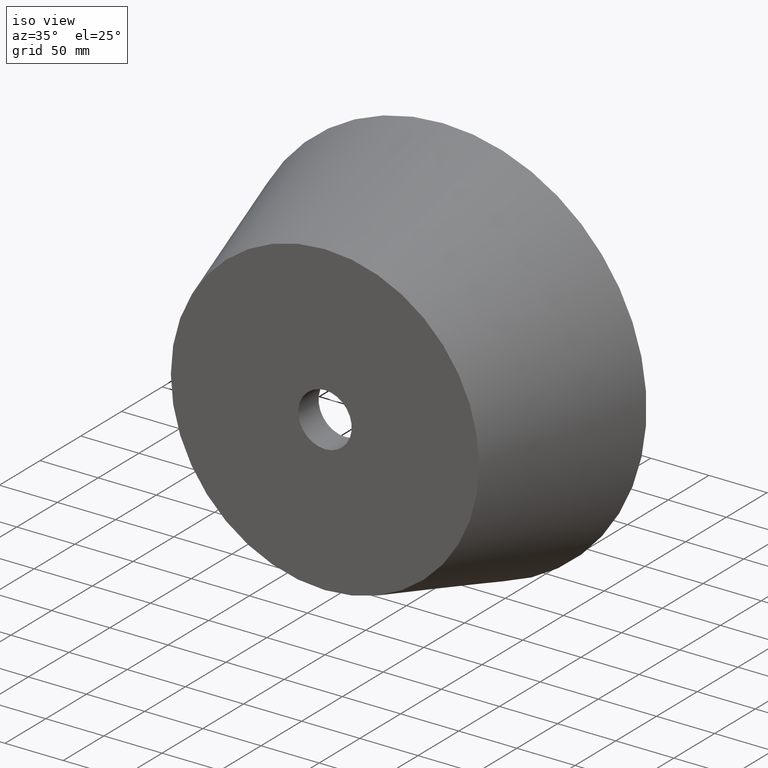
[diagram: clean part render]
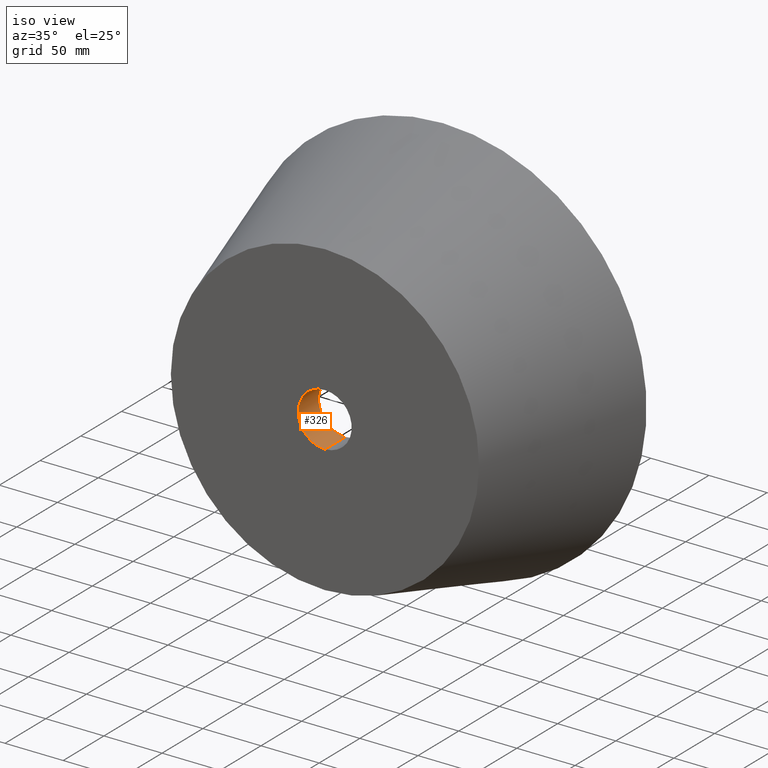
[diagram: same view with one face highlighted and labeled with its STEP entity id]
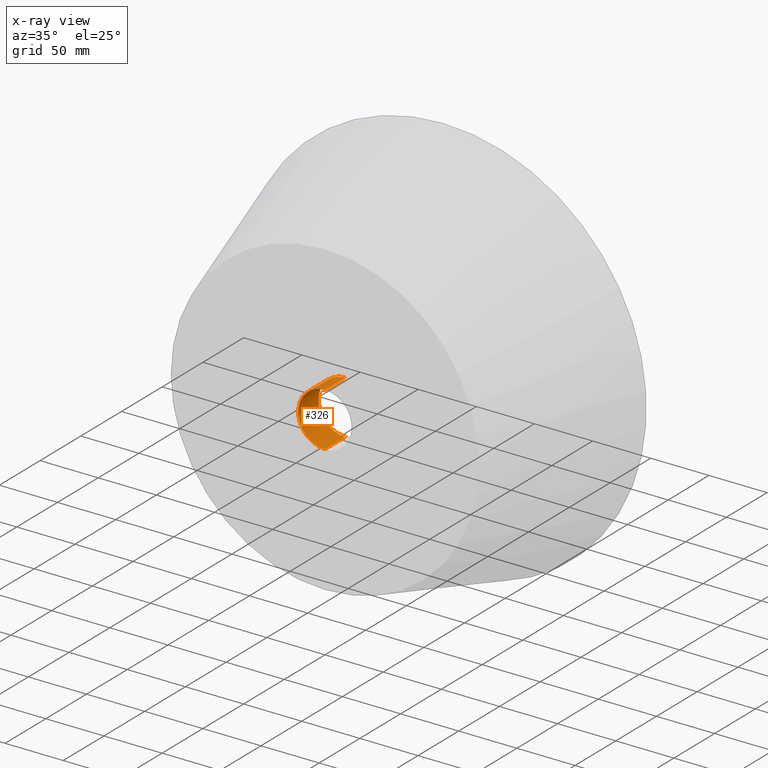
[diagram: x-ray of the same camera — body ghosted, the highlighted face saturated]
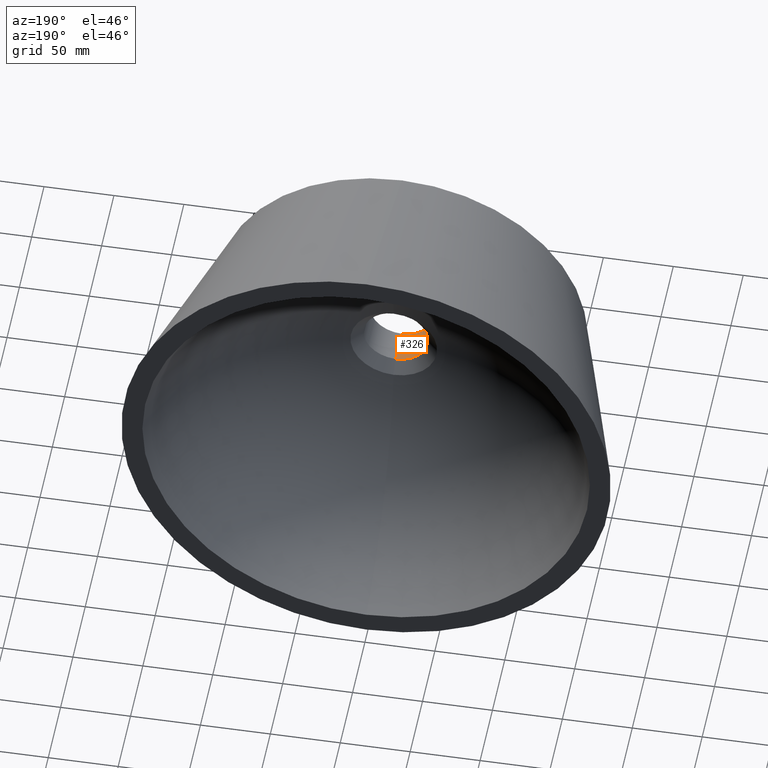
[diagram: same view with one face highlighted and labeled with its STEP entity id]
A machine part, iso view. The second image highlights one B-rep face of the part: STEP entity #326.
The next image is the same camera in x-ray: the body ghosted, the highlighted face saturated — about 0% of this face is hidden behind the body in this view.
A second angle (auxiliary view) of the same face is appended — the face is thin or edge-on in the first view.
In plain terms, the highlighted cylindrical surface (edge-blend (fillet) strip) has radius 23 mm, axis along (-0, -1, -0).
Its self-contained STEP definition (entity closure, byte-faithful):
#7 = LINE ( 'NONE', #65, #258 ) ;
#9 = AXIS2_PLACEMENT_3D ( 'NONE', #213, #216, #217 ) ;
#13 = CYLINDRICAL_SURFACE ( 'NONE', #9, 23.00000000000000000 ) ;
#34 = CARTESIAN_POINT ( 'NONE',  ( 2.816687638038912400E-015, 25.00000000000001400, 23.00000000000000000 ) ) ;
#50 = VERTEX_POINT ( 'NONE', #115 ) ;
#57 = AXIS2_PLACEMENT_3D ( 'NONE', #176, #148, #259 ) ;
#60 = VECTOR ( 'NONE', #165, 1000.000000000000000 ) ;
#65 = CARTESIAN_POINT ( 'NONE',  ( 0.0000000000000000000, 0.0000000000000000000, -23.00000000000000000 ) ) ;
#84 = CIRCLE ( 'NONE', #57, 23.00000000000000000 ) ;
#96 = ORIENTED_EDGE ( 'NONE', *, *, #157, .F. ) ;
#111 = VERTEX_POINT ( 'NONE', #254 ) ;
#115 = CARTESIAN_POINT ( 'NONE',  ( 0.0000000000000000000, 1.040834085586084300E-014, -23.00000000000000400 ) ) ;
#130 = LINE ( 'NONE', #244, #60 ) ;
#148 = DIRECTION ( 'NONE',  ( -0.0000000000000000000, -1.000000000000000000, -0.0000000000000000000 ) ) ;
#149 = FACE_OUTER_BOUND ( 'NONE', #298, .T. ) ;
#154 = DIRECTION ( 'NONE',  ( -0.0000000000000000000, -1.000000000000000000, -0.0000000000000000000 ) ) ;
#157 = EDGE_CURVE ( 'NONE', #286, #253, #84, .T. ) ;
#159 = AXIS2_PLACEMENT_3D ( 'NONE', #317, #154, #192 ) ;
#163 = CARTESIAN_POINT ( 'NONE',  ( 0.0000000000000000000, 25.00000000000001400, -23.00000000000000000 ) ) ;
#165 = DIRECTION ( 'NONE',  ( -0.0000000000000000000, -1.000000000000000000, -0.0000000000000000000 ) ) ;
#176 = CARTESIAN_POINT ( 'NONE',  ( 0.0000000000000000000, 25.00000000000001400, 0.0000000000000000000 ) ) ;
#180 = DIRECTION ( 'NONE',  ( -0.0000000000000000000, -1.000000000000000000, -0.0000000000000000000 ) ) ;
#185 = CIRCLE ( 'NONE', #159, 23.00000000000000400 ) ;
#192 = DIRECTION ( 'NONE',  ( 0.0000000000000000000, 0.0000000000000000000, -1.000000000000000000 ) ) ;
#196 = EDGE_CURVE ( 'NONE', #286, #111, #130, .T. ) ;
#205 = EDGE_CURVE ( 'NONE', #111, #50, #185, .T. ) ;
#213 = CARTESIAN_POINT ( 'NONE',  ( 0.0000000000000000000, 0.0000000000000000000, 0.0000000000000000000 ) ) ;
#216 = DIRECTION ( 'NONE',  ( -0.0000000000000000000, -1.000000000000000000, -0.0000000000000000000 ) ) ;
#217 = DIRECTION ( 'NONE',  ( 0.0000000000000000000, 0.0000000000000000000, -1.000000000000000000 ) ) ;
#233 = EDGE_CURVE ( 'NONE', #253, #50, #7, .T. ) ;
#234 = ORIENTED_EDGE ( 'NONE', *, *, #196, .T. ) ;
#244 = CARTESIAN_POINT ( 'NONE',  ( 2.816687638038912400E-015, 0.0000000000000000000, 23.00000000000000000 ) ) ;
#253 = VERTEX_POINT ( 'NONE', #163 ) ;
#254 = CARTESIAN_POINT ( 'NONE',  ( 2.816687638038913100E-015, 1.040834085586084300E-014, 23.00000000000000400 ) ) ;
#258 = VECTOR ( 'NONE', #180, 1000.000000000000000 ) ;
#259 = DIRECTION ( 'NONE',  ( 0.0000000000000000000, 0.0000000000000000000, -1.000000000000000000 ) ) ;
#280 = ORIENTED_EDGE ( 'NONE', *, *, #205, .T. ) ;
#286 = VERTEX_POINT ( 'NONE', #34 ) ;
#292 = ORIENTED_EDGE ( 'NONE', *, *, #233, .F. ) ;
#298 = EDGE_LOOP ( 'NONE', ( #96, #234, #280, #292 ) ) ;
#317 = CARTESIAN_POINT ( 'NONE',  ( 0.0000000000000000000, 1.040834085586084300E-014, 0.0000000000000000000 ) ) ;
#326 = ADVANCED_FACE ( 'NONE', ( #149 ), #13, .F. ) ;